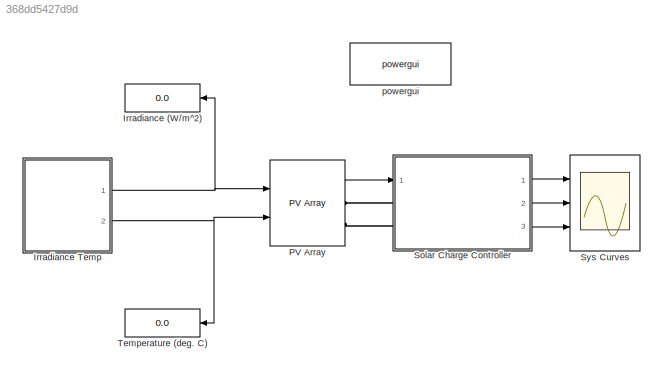
MODEL slx_368dd5427d9d
KIND model
CONFIG AbsTol = auto
CONFIG EnableMultiTasking = off
CONFIG FixedStep = auto
CONFIG MaxStep = auto
CONFIG MinStep = auto
CONFIG PreLoadFcn = Ts_Power=1e-6;\nTs_Control=100e-6;
CONFIG RelTol = 1e-3
CONFIG SampleTimeConstraint = Unconstrained
CONFIG Solver = ode45
CONFIG SolverName = ode45
CONFIG StartTime = 0.0
CONFIG StopTime = 1
BLOCK [Display] Irradiance (W//m^2)
  Decimation = 1000
  Format = bank
  Ports = [1]
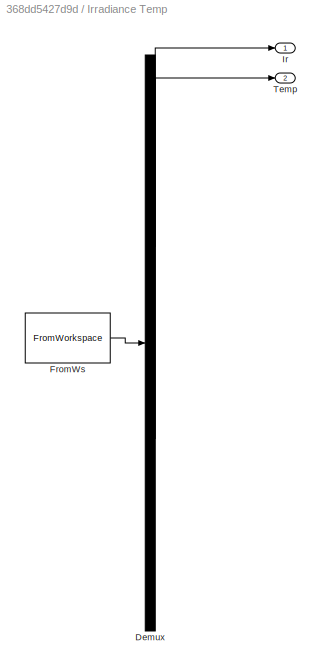
BLOCK [SubSystem] Irradiance Temp
  ClipboardFcn = sigbuilder_block('clipboard');
  CloseFcn = sigbuilder_block('close');
  ContinueFcn = sigbuilder_block('continue')
  CopyFcn = sigbuilder_block('copy');
  DeleteFcn = sigbuilder_block('delete');
  LoadFcn = sigbuilder_block('load');
  MaskHideContents = on
  ModelCloseFcn = sigbuilder_block('modelClose');
  NameChangeFcn = sigbuilder_block('namechange');
  OpenFcn = sigbuilder_block('open',[216.75 189 451.5 323.25 ]);
  PauseFcn = sigbuilder_block('pause')
  Ports = [0, 2]
  PreSaveFcn = sigbuilder_block('preSave');
  RequestExecContextInheritance = off
  StartFcn = sigbuilder_block('start');
  StopFcn = sigbuilder_block('stop');
  Tag = STV Subsys
  Variant = off
BLOCK [Demux] Irradiance Temp/Demux
  Outputs = 2
  Ports = [1, 2]
  Tag = STV Demux
BLOCK [FromWorkspace] Irradiance Temp/FromWs
  SampleTime = 0
  Tag = STV FromWs
  VariableName = tuvar
  ZeroCross = on
BLOCK [Outport] Irradiance Temp/Ir
  IconDisplay = Port number
  Tag = STV Outport
BLOCK [Outport] Irradiance Temp/Temp
  IconDisplay = Port number
  Port = 2
  Tag = STV Outport
BLOCK [Reference] PV Array  REF=re_lib/Solar/PV Array
  Ports = [2, 1, 0, 0, 0, 0, 2]
  SourceBlock = re_lib/Solar/PV Array
  SourceProductBaseCode = PS
  SourceProductName = Simscape Power Systems
  SourceType = PV array
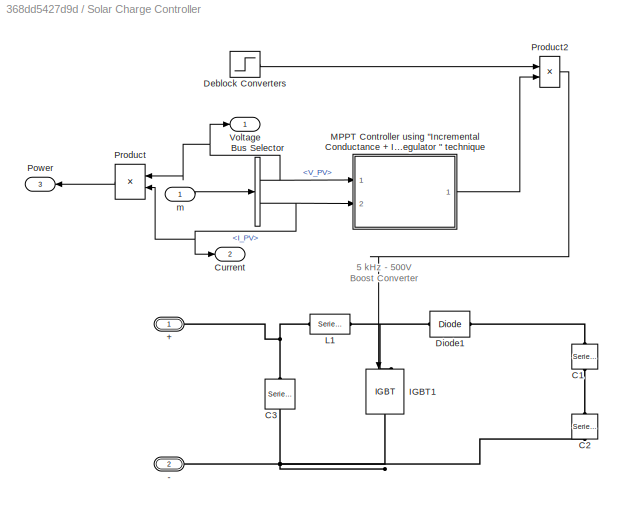
BLOCK [SubSystem] Solar Charge Controller
  Ports = [1, 3, 0, 0, 0, 2]
  RequestExecContextInheritance = off
  Variant = off
BLOCK [PMIOPort] Solar Charge Controller/+ 
  Port = 1
  Side = Left
BLOCK [PMIOPort] Solar Charge Controller/-
  Port = 2
  Side = Left
BLOCK [BusSelector] Solar Charge Controller/Bus Selector
  OutputAsBus = off
  OutputSignals = V_PV,I_PV
  Ports = [1, 2]
BLOCK [Reference] Solar Charge Controller/C1  REF=powerlib/Elements/Series RLC Branch
  AttributesFormatString = \n
  Ports = [0, 0, 0, 0, 0, 1, 1]
  SourceBlock = powerlib/Elements/Series RLC Branch
  SourceProductBaseCode = PS
  SourceProductName = Simscape Power Systems
  SourceType = Series RLC Branch
BLOCK [Reference] Solar Charge Controller/C2  REF=powerlib/Elements/Series RLC Branch
  AttributesFormatString = \n
  Ports = [0, 0, 0, 0, 0, 1, 1]
  SourceBlock = powerlib/Elements/Series RLC Branch
  SourceProductBaseCode = PS
  SourceProductName = Simscape Power Systems
  SourceType = Series RLC Branch
BLOCK [Reference] Solar Charge Controller/C3  REF=powerlib/Elements/Series RLC Branch
  AttributesFormatString = \n
  Ports = [0, 0, 0, 0, 0, 1, 1]
  SourceBlock = powerlib/Elements/Series RLC Branch
  SourceProductBaseCode = PS
  SourceProductName = Simscape Power Systems
  SourceType = Series RLC Branch
BLOCK [Outport] Solar Charge Controller/Current
  IconDisplay = Port number
  Port = 2
BLOCK [Step] Solar Charge Controller/Deblock Converters
  SampleTime = 0
  Time = .05
BLOCK [Reference] Solar Charge Controller/Diode1  REF=powerlib/Power
Electronics/Diode
  Ports = [0, 0, 0, 0, 0, 1, 1]
  SourceBlock = powerlib/Power\nElectronics/Diode
  SourceProductBaseCode = PS
  SourceProductName = Simscape Power Systems
  SourceType = Diode
BLOCK [Reference] Solar Charge Controller/IGBT1  REF=powerlib/Power
Electronics/IGBT
  Ports = [1, 0, 0, 0, 0, 1, 1]
  SourceBlock = powerlib/Power\nElectronics/IGBT
  SourceProductBaseCode = PS
  SourceProductName = Simscape Power Systems
  SourceType = IGBT
BLOCK [Reference] Solar Charge Controller/L1  REF=powerlib/Elements/Series RLC Branch
  Ports = [0, 0, 0, 0, 0, 1, 1]
  SourceBlock = powerlib/Elements/Series RLC Branch
  SourceProductBaseCode = PS
  SourceProductName = Simscape Power Systems
  SourceType = Series RLC Branch
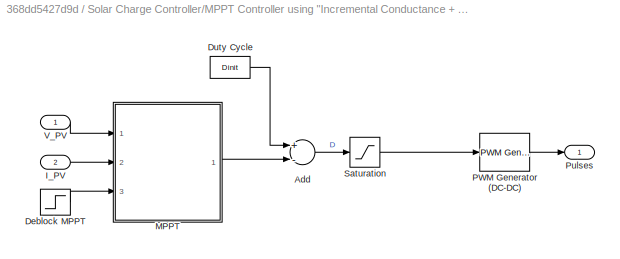
BLOCK [SubSystem] Solar Charge Controller/MPPT Controller using  "Incremental Conductance + Integral Regulator "  technique 
  Ports = [2, 1]
  RequestExecContextInheritance = off
  Variant = off
BLOCK [Sum] Solar Charge Controller/MPPT Controller using  "Incremental Conductance + Integral Regulator "  technique /Add
  InputSameDT = off
  Inputs = +-
  OutDataTypeStr = Inherit: Inherit via internal rule
  Ports = [2, 1]
  SaturateOnIntegerOverflow = off
BLOCK [Step] Solar Charge Controller/MPPT Controller using  "Incremental Conductance + Integral Regulator "  technique /Deblock MPPT
  SampleTime = 0
  Time = 0.4
BLOCK [Constant] Solar Charge Controller/MPPT Controller using  "Incremental Conductance + Integral Regulator "  technique /Duty Cycle
  Value = Dinit
BLOCK [Inport] Solar Charge Controller/MPPT Controller using  "Incremental Conductance + Integral Regulator "  technique /I_PV
  IconDisplay = Port number
  Port = 2
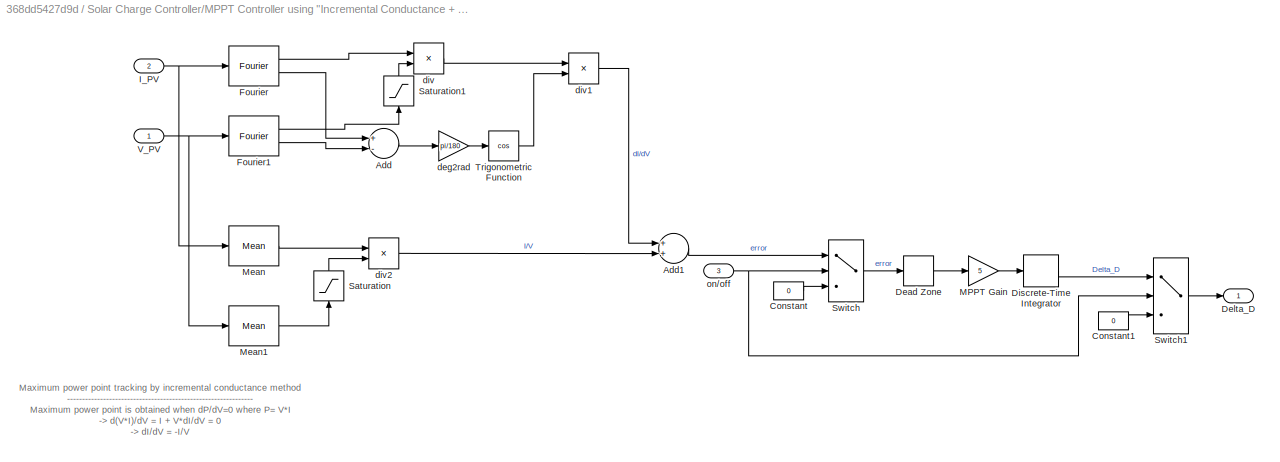
BLOCK [SubSystem] Solar Charge Controller/MPPT Controller using  "Incremental Conductance + Integral Regulator "  technique /MPPT
  Ports = [3, 1]
  RequestExecContextInheritance = off
  Variant = off
BLOCK [Sum] Solar Charge Controller/MPPT Controller using  "Incremental Conductance + Integral Regulator "  technique /MPPT/Add
  InputSameDT = off
  Inputs = +-
  OutDataTypeStr = Inherit: Inherit via internal rule
  Ports = [2, 1]
  SaturateOnIntegerOverflow = off
BLOCK [Sum] Solar Charge Controller/MPPT Controller using  "Incremental Conductance + Integral Regulator "  technique /MPPT/Add1
  InputSameDT = off
  OutDataTypeStr = Inherit: Inherit via internal rule
  Ports = [2, 1]
  SaturateOnIntegerOverflow = off
BLOCK [Constant] Solar Charge Controller/MPPT Controller using  "Incremental Conductance + Integral Regulator "  technique /MPPT/Constant
  Value = 0
BLOCK [Constant] Solar Charge Controller/MPPT Controller using  "Incremental Conductance + Integral Regulator "  technique /MPPT/Constant1
  Value = 0
BLOCK [DeadZone] Solar Charge Controller/MPPT Controller using  "Incremental Conductance + Integral Regulator "  technique /MPPT/Dead Zone
  LowerValue = -0.05
  UpperValue = 0.05
BLOCK [Outport] Solar Charge Controller/MPPT Controller using  "Incremental Conductance + Integral Regulator "  technique /MPPT/Delta_D
  IconDisplay = Port number
BLOCK [DiscreteIntegrator] Solar Charge Controller/MPPT Controller using  "Incremental Conductance + Integral Regulator "  technique /MPPT/Discrete-Time Integrator
  ICPrevOutput = DiscIntNeverNeededParam
  ICPrevScaledInput = DiscIntNeverNeededParam
  LimitOutput = on
  LowerSaturationLimit = -1
  Ports = [1, 1]
  SampleTime = Ts_Control
  UpperSaturationLimit = 1
BLOCK [Reference] Solar Charge Controller/MPPT Controller using  "Incremental Conductance + Integral Regulator "  technique /MPPT/Fourier  REF=powerlib_meascontrol/Measurements/Fourier
  Ports = [1, 2]
  SourceBlock = powerlib_meascontrol/Measurements/Fourier
  SourceProductBaseCode = PS
  SourceProductName = Simscape Power Systems
  SourceType = Fourier
BLOCK [Reference] Solar Charge Controller/MPPT Controller using  "Incremental Conductance + Integral Regulator "  technique /MPPT/Fourier1  REF=powerlib_meascontrol/Measurements/Fourier
  Ports = [1, 2]
  SourceBlock = powerlib_meascontrol/Measurements/Fourier
  SourceProductBaseCode = PS
  SourceProductName = Simscape Power Systems
  SourceType = Fourier
BLOCK [Inport] Solar Charge Controller/MPPT Controller using  "Incremental Conductance + Integral Regulator "  technique /MPPT/I_PV
  IconDisplay = Port number
  Port = 2
BLOCK [Gain] Solar Charge Controller/MPPT Controller using  "Incremental Conductance + Integral Regulator "  technique /MPPT/MPPT Gain
  Gain = 5
  OutDataTypeStr = Inherit: Inherit via internal rule
  ParamDataTypeStr = Inherit: Inherit via internal rule
  SaturateOnIntegerOverflow = off
BLOCK [Reference] Solar Charge Controller/MPPT Controller using  "Incremental Conductance + Integral Regulator "  technique /MPPT/Mean  REF=powerlib_meascontrol/Measurements/Mean
  Ports = [1, 1]
  SourceBlock = powerlib_meascontrol/Measurements/Mean
  SourceProductBaseCode = PS
  SourceProductName = Simscape Power Systems
  SourceType = Mean
BLOCK [Reference] Solar Charge Controller/MPPT Controller using  "Incremental Conductance + Integral Regulator "  technique /MPPT/Mean1  REF=powerlib_meascontrol/Measurements/Mean
  Ports = [1, 1]
  SourceBlock = powerlib_meascontrol/Measurements/Mean
  SourceProductBaseCode = PS
  SourceProductName = Simscape Power Systems
  SourceType = Mean
BLOCK [Saturate] Solar Charge Controller/MPPT Controller using  "Incremental Conductance + Integral Regulator "  technique /MPPT/Saturation
  InputPortMap = u0
  LowerLimit = eps
  Ports = [1, 1]
  UpperLimit = inf
BLOCK [Saturate] Solar Charge Controller/MPPT Controller using  "Incremental Conductance + Integral Regulator "  technique /MPPT/Saturation1
  InputPortMap = u0
  LowerLimit = eps
  Ports = [1, 1]
  UpperLimit = inf
BLOCK [Switch] Solar Charge Controller/MPPT Controller using  "Incremental Conductance + Integral Regulator "  technique /MPPT/Switch
  InputSameDT = off
  SaturateOnIntegerOverflow = off
  Threshold = 0.5
BLOCK [Switch] Solar Charge Controller/MPPT Controller using  "Incremental Conductance + Integral Regulator "  technique /MPPT/Switch1
  InputSameDT = off
  SaturateOnIntegerOverflow = off
  Threshold = 0.5
BLOCK [Trigonometry] Solar Charge Controller/MPPT Controller using  "Incremental Conductance + Integral Regulator "  technique /MPPT/Trigonometric Function
  Operator = cos
  Ports = [1, 1]
BLOCK [Inport] Solar Charge Controller/MPPT Controller using  "Incremental Conductance + Integral Regulator "  technique /MPPT/V_PV
  IconDisplay = Port number
BLOCK [Gain] Solar Charge Controller/MPPT Controller using  "Incremental Conductance + Integral Regulator "  technique /MPPT/deg2rad
  Gain = pi/180
  OutDataTypeStr = Inherit: Inherit via internal rule
  ParamDataTypeStr = Inherit: Inherit via internal rule
  SaturateOnIntegerOverflow = off
BLOCK [Product] Solar Charge Controller/MPPT Controller using  "Incremental Conductance + Integral Regulator "  technique /MPPT/div
  InputSameDT = off
  Inputs = */
  OutDataTypeStr = Inherit: Inherit via internal rule
  Ports = [2, 1]
  SaturateOnIntegerOverflow = off
BLOCK [Product] Solar Charge Controller/MPPT Controller using  "Incremental Conductance + Integral Regulator "  technique /MPPT/div1
  InputSameDT = off
  Inputs = **
  OutDataTypeStr = Inherit: Inherit via internal rule
  Ports = [2, 1]
  SaturateOnIntegerOverflow = off
BLOCK [Product] Solar Charge Controller/MPPT Controller using  "Incremental Conductance + Integral Regulator "  technique /MPPT/div2
  InputSameDT = off
  Inputs = */
  OutDataTypeStr = Inherit: Inherit via internal rule
  Ports = [2, 1]
  SaturateOnIntegerOverflow = off
BLOCK [Inport] Solar Charge Controller/MPPT Controller using  "Incremental Conductance + Integral Regulator "  technique /MPPT/on//off
  IconDisplay = Port number
  Port = 3
BLOCK [Reference] Solar Charge Controller/MPPT Controller using  "Incremental Conductance + Integral Regulator "  technique /PWM Generator (DC-DC)  REF=powerlib_meascontrol/Pulse & Signal
Generators/PWM Generator
(DC-DC)
  Ports = [1, 1]
  SourceBlock = powerlib_meascontrol/Pulse & Signal\nGenerators/PWM Generator\n(DC-DC)
  SourceProductBaseCode = PS
  SourceProductName = Simscape Power Systems
  SourceType = PWM Generator (DC-DC)
BLOCK [Outport] Solar Charge Controller/MPPT Controller using  "Incremental Conductance + Integral Regulator "  technique /Pulses
  IconDisplay = Port number
BLOCK [Saturate] Solar Charge Controller/MPPT Controller using  "Incremental Conductance + Integral Regulator "  technique /Saturation
  InputPortMap = u0
  LowerLimit = 0
  Ports = [1, 1]
  UpperLimit = 1
BLOCK [Inport] Solar Charge Controller/MPPT Controller using  "Incremental Conductance + Integral Regulator "  technique /V_PV
  IconDisplay = Port number
BLOCK [Outport] Solar Charge Controller/Power
  IconDisplay = Port number
  Port = 3
BLOCK [Product] Solar Charge Controller/Product
  InputSameDT = off
  OutDataTypeStr = Inherit: Inherit via internal rule
  Ports = [2, 1]
  RndMeth = Floor
  SaturateOnIntegerOverflow = off
BLOCK [Product] Solar Charge Controller/Product2
  InputSameDT = off
  OutDataTypeStr = Inherit: Inherit via internal rule
  Ports = [2, 1]
  SaturateOnIntegerOverflow = off
BLOCK [Outport] Solar Charge Controller/Voltage
  IconDisplay = Port number
BLOCK [Inport] Solar Charge Controller/m
  IconDisplay = Port number
BLOCK [Scope] Sys Curves
  NumInputPorts = 3
  Ports = [3]
  ScopeSpecificationString = Simulink.scopes.TimeScopeBlockCfg('CurrentConfiguration', extmgr.ConfigurationSet(extmgr.Configuration('Core','General UI',true),extmgr.Configuration('Core','Source UI',true),extmgr.Configuration('Sources','WiredSimulink',true,'DataLoggingSaveFormat','Array','DataLoggingDecimation','1','DataLoggingDecimateData',true),extmgr.Configuration('Visuals','Time Domain',true,'SerializedDisplays',{struct('M...<+3030ch>
BLOCK [Display] Temperature (deg. C)
  Decimation = 1000
  Format = bank
  Ports = [1]
BLOCK [Reference] powergui  REF=powerlib/powergui
  Ports = []
  Priority = 1
  SourceBlock = powerlib/powergui
  SourceProductBaseCode = PS
  SourceProductName = Simscape Power Systems
  SourceType = PSB option menu block
ANNOTATION Solar Charge Controller: 5 kHz - 500V Boost Converter
ANNOTATION Solar Charge Controller/MPPT Controller using  "Incremental Conductance + Integral Regulator "  technique /MPPT: Maximum power point tracking by incremental conductance method -------------------------------------------------------------- Maximum power point is obtained when dP/dV=0 where P= V*I -> d(V*I)/dV = I + V*dI/dV = 0 -> dI/dV = -I/V dI, dV = fundamental components of I and V ripples measured with a sliding time window T_MPPT I , V = mean values of V and I measured with a sliding time window T_MPPT T...<+96ch>
NET Irradiance Temp:1 -> Irradiance (W//m^2):1, PV Array:1
NET Irradiance Temp:2 -> PV Array:2, Temperature (deg. C):1
LINE PV Array:1 -> Solar Charge Controller:1
NET Solar Charge Controller/Bus Selector:1 -> Solar Charge Controller/MPPT Controller using  "Incremental Conductance + Integral Regulator "  technique :1, Solar Charge Controller/Product:1, Solar Charge Controller/Voltage:1
NET Solar Charge Controller/Bus Selector:2 -> Solar Charge Controller/Current:1, Solar Charge Controller/MPPT Controller using  "Incremental Conductance + Integral Regulator "  technique :2, Solar Charge Controller/Product:2
LINE Solar Charge Controller/Deblock Converters:1 -> Solar Charge Controller/Product2:1
LINE Solar Charge Controller/MPPT Controller using  "Incremental Conductance + Integral Regulator "  technique /Add:1 -> Solar Charge Controller/MPPT Controller using  "Incremental Conductance + Integral Regulator "  technique /Saturation:1
LINE Solar Charge Controller/MPPT Controller using  "Incremental Conductance + Integral Regulator "  technique /Deblock MPPT:1 -> Solar Charge Controller/MPPT Controller using  "Incremental Conductance + Integral Regulator "  technique /MPPT:3
LINE Solar Charge Controller/MPPT Controller using  "Incremental Conductance + Integral Regulator "  technique /Duty Cycle:1 -> Solar Charge Controller/MPPT Controller using  "Incremental Conductance + Integral Regulator "  technique /Add:1
LINE Solar Charge Controller/MPPT Controller using  "Incremental Conductance + Integral Regulator "  technique /I_PV:1 -> Solar Charge Controller/MPPT Controller using  "Incremental Conductance + Integral Regulator "  technique /MPPT:2
LINE Solar Charge Controller/MPPT Controller using  "Incremental Conductance + Integral Regulator "  technique /MPPT/Add1:1 -> Solar Charge Controller/MPPT Controller using  "Incremental Conductance + Integral Regulator "  technique /MPPT/Switch:1
LINE Solar Charge Controller/MPPT Controller using  "Incremental Conductance + Integral Regulator "  technique /MPPT/Add:1 -> Solar Charge Controller/MPPT Controller using  "Incremental Conductance + Integral Regulator "  technique /MPPT/deg2rad:1
LINE Solar Charge Controller/MPPT Controller using  "Incremental Conductance + Integral Regulator "  technique /MPPT/Constant1:1 -> Solar Charge Controller/MPPT Controller using  "Incremental Conductance + Integral Regulator "  technique /MPPT/Switch1:3
LINE Solar Charge Controller/MPPT Controller using  "Incremental Conductance + Integral Regulator "  technique /MPPT/Constant:1 -> Solar Charge Controller/MPPT Controller using  "Incremental Conductance + Integral Regulator "  technique /MPPT/Switch:3
LINE Solar Charge Controller/MPPT Controller using  "Incremental Conductance + Integral Regulator "  technique /MPPT/Dead Zone:1 -> Solar Charge Controller/MPPT Controller using  "Incremental Conductance + Integral Regulator "  technique /MPPT/MPPT Gain:1
LINE Solar Charge Controller/MPPT Controller using  "Incremental Conductance + Integral Regulator "  technique /MPPT/Discrete-Time Integrator:1 -> Solar Charge Controller/MPPT Controller using  "Incremental Conductance + Integral Regulator "  technique /MPPT/Switch1:1
LINE Solar Charge Controller/MPPT Controller using  "Incremental Conductance + Integral Regulator "  technique /MPPT/Fourier1:1 -> Solar Charge Controller/MPPT Controller using  "Incremental Conductance + Integral Regulator "  technique /MPPT/Saturation1:1
LINE Solar Charge Controller/MPPT Controller using  "Incremental Conductance + Integral Regulator "  technique /MPPT/Fourier1:2 -> Solar Charge Controller/MPPT Controller using  "Incremental Conductance + Integral Regulator "  technique /MPPT/Add:2
LINE Solar Charge Controller/MPPT Controller using  "Incremental Conductance + Integral Regulator "  technique /MPPT/Fourier:1 -> Solar Charge Controller/MPPT Controller using  "Incremental Conductance + Integral Regulator "  technique /MPPT/div:1
LINE Solar Charge Controller/MPPT Controller using  "Incremental Conductance + Integral Regulator "  technique /MPPT/Fourier:2 -> Solar Charge Controller/MPPT Controller using  "Incremental Conductance + Integral Regulator "  technique /MPPT/Add:1
NET Solar Charge Controller/MPPT Controller using  "Incremental Conductance + Integral Regulator "  technique /MPPT/I_PV:1 -> Solar Charge Controller/MPPT Controller using  "Incremental Conductance + Integral Regulator "  technique /MPPT/Fourier:1, Solar Charge Controller/MPPT Controller using  "Incremental Conductance + Integral Regulator "  technique /MPPT/Mean:1
LINE Solar Charge Controller/MPPT Controller using  "Incremental Conductance + Integral Regulator "  technique /MPPT/MPPT Gain:1 -> Solar Charge Controller/MPPT Controller using  "Incremental Conductance + Integral Regulator "  technique /MPPT/Discrete-Time Integrator:1
LINE Solar Charge Controller/MPPT Controller using  "Incremental Conductance + Integral Regulator "  technique /MPPT/Mean1:1 -> Solar Charge Controller/MPPT Controller using  "Incremental Conductance + Integral Regulator "  technique /MPPT/Saturation:1
LINE Solar Charge Controller/MPPT Controller using  "Incremental Conductance + Integral Regulator "  technique /MPPT/Mean:1 -> Solar Charge Controller/MPPT Controller using  "Incremental Conductance + Integral Regulator "  technique /MPPT/div2:1
LINE Solar Charge Controller/MPPT Controller using  "Incremental Conductance + Integral Regulator "  technique /MPPT/Saturation1:1 -> Solar Charge Controller/MPPT Controller using  "Incremental Conductance + Integral Regulator "  technique /MPPT/div:2
LINE Solar Charge Controller/MPPT Controller using  "Incremental Conductance + Integral Regulator "  technique /MPPT/Saturation:1 -> Solar Charge Controller/MPPT Controller using  "Incremental Conductance + Integral Regulator "  technique /MPPT/div2:2
LINE Solar Charge Controller/MPPT Controller using  "Incremental Conductance + Integral Regulator "  technique /MPPT/Switch1:1 -> Solar Charge Controller/MPPT Controller using  "Incremental Conductance + Integral Regulator "  technique /MPPT/Delta_D:1
LINE Solar Charge Controller/MPPT Controller using  "Incremental Conductance + Integral Regulator "  technique /MPPT/Switch:1 -> Solar Charge Controller/MPPT Controller using  "Incremental Conductance + Integral Regulator "  technique /MPPT/Dead Zone:1
LINE Solar Charge Controller/MPPT Controller using  "Incremental Conductance + Integral Regulator "  technique /MPPT/Trigonometric Function:1 -> Solar Charge Controller/MPPT Controller using  "Incremental Conductance + Integral Regulator "  technique /MPPT/div1:2
NET Solar Charge Controller/MPPT Controller using  "Incremental Conductance + Integral Regulator "  technique /MPPT/V_PV:1 -> Solar Charge Controller/MPPT Controller using  "Incremental Conductance + Integral Regulator "  technique /MPPT/Fourier1:1, Solar Charge Controller/MPPT Controller using  "Incremental Conductance + Integral Regulator "  technique /MPPT/Mean1:1
LINE Solar Charge Controller/MPPT Controller using  "Incremental Conductance + Integral Regulator "  technique /MPPT/deg2rad:1 -> Solar Charge Controller/MPPT Controller using  "Incremental Conductance + Integral Regulator "  technique /MPPT/Trigonometric Function:1
LINE Solar Charge Controller/MPPT Controller using  "Incremental Conductance + Integral Regulator "  technique /MPPT/div1:1 -> Solar Charge Controller/MPPT Controller using  "Incremental Conductance + Integral Regulator "  technique /MPPT/Add1:1
LINE Solar Charge Controller/MPPT Controller using  "Incremental Conductance + Integral Regulator "  technique /MPPT/div2:1 -> Solar Charge Controller/MPPT Controller using  "Incremental Conductance + Integral Regulator "  technique /MPPT/Add1:2
LINE Solar Charge Controller/MPPT Controller using  "Incremental Conductance + Integral Regulator "  technique /MPPT/div:1 -> Solar Charge Controller/MPPT Controller using  "Incremental Conductance + Integral Regulator "  technique /MPPT/div1:1
NET Solar Charge Controller/MPPT Controller using  "Incremental Conductance + Integral Regulator "  technique /MPPT/on//off:1 -> Solar Charge Controller/MPPT Controller using  "Incremental Conductance + Integral Regulator "  technique /MPPT/Switch1:2, Solar Charge Controller/MPPT Controller using  "Incremental Conductance + Integral Regulator "  technique /MPPT/Switch:2
LINE Solar Charge Controller/MPPT Controller using  "Incremental Conductance + Integral Regulator "  technique /MPPT:1 -> Solar Charge Controller/MPPT Controller using  "Incremental Conductance + Integral Regulator "  technique /Add:2
LINE Solar Charge Controller/MPPT Controller using  "Incremental Conductance + Integral Regulator "  technique /PWM Generator (DC-DC):1 -> Solar Charge Controller/MPPT Controller using  "Incremental Conductance + Integral Regulator "  technique /Pulses:1
LINE Solar Charge Controller/MPPT Controller using  "Incremental Conductance + Integral Regulator "  technique /Saturation:1 -> Solar Charge Controller/MPPT Controller using  "Incremental Conductance + Integral Regulator "  technique /PWM Generator (DC-DC):1
LINE Solar Charge Controller/MPPT Controller using  "Incremental Conductance + Integral Regulator "  technique /V_PV:1 -> Solar Charge Controller/MPPT Controller using  "Incremental Conductance + Integral Regulator "  technique /MPPT:1
LINE Solar Charge Controller/MPPT Controller using  "Incremental Conductance + Integral Regulator "  technique :1 -> Solar Charge Controller/Product2:2
LINE Solar Charge Controller/Product2:1 -> Solar Charge Controller/IGBT1:1
LINE Solar Charge Controller/Product:1 -> Solar Charge Controller/Power:1
LINE Solar Charge Controller/m:1 -> Solar Charge Controller/Bus Selector:1
LINE Solar Charge Controller:1 -> Sys Curves:1
LINE Solar Charge Controller:2 -> Sys Curves:2
LINE Solar Charge Controller:3 -> Sys Curves:3
PLINE PV Array:RConn1 -- Solar Charge Controller:LConn1
PLINE PV Array:RConn2 -- Solar Charge Controller:LConn2
PNET net1: Solar Charge Controller/+ :RConn1 -- Solar Charge Controller/C3:LConn1 -- Solar Charge Controller/L1:LConn1
PNET net2: Solar Charge Controller/-:RConn1 -- Solar Charge Controller/C2:RConn1 -- Solar Charge Controller/C3:RConn1 -- Solar Charge Controller/IGBT1:RConn1
PLINE Solar Charge Controller/C1:LConn1 -- Solar Charge Controller/Diode1:RConn1
PLINE Solar Charge Controller/C1:RConn1 -- Solar Charge Controller/C2:LConn1
PNET net3: Solar Charge Controller/Diode1:LConn1 -- Solar Charge Controller/IGBT1:LConn1 -- Solar Charge Controller/L1:RConn1
note: NET lines group one-source signal fan-out (src -> all destinations, sorted); 1:1 wires keep LINE; PNET lines group multi-terminal physical nets as a canonical sorted terminal list (undirected conserving connections); 2-terminal nets keep the pairwise PLINE form
